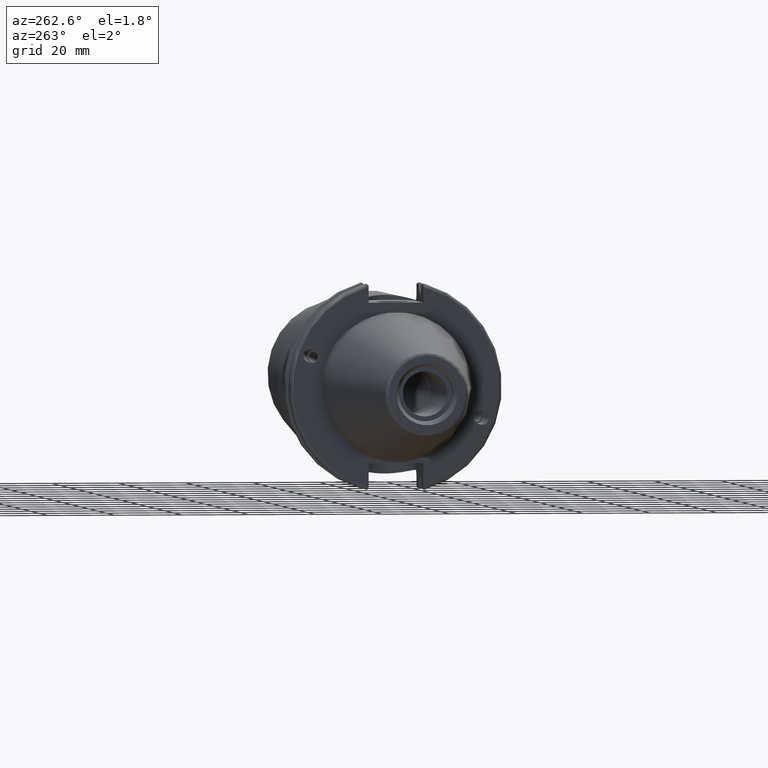
[diagram: clean part render]
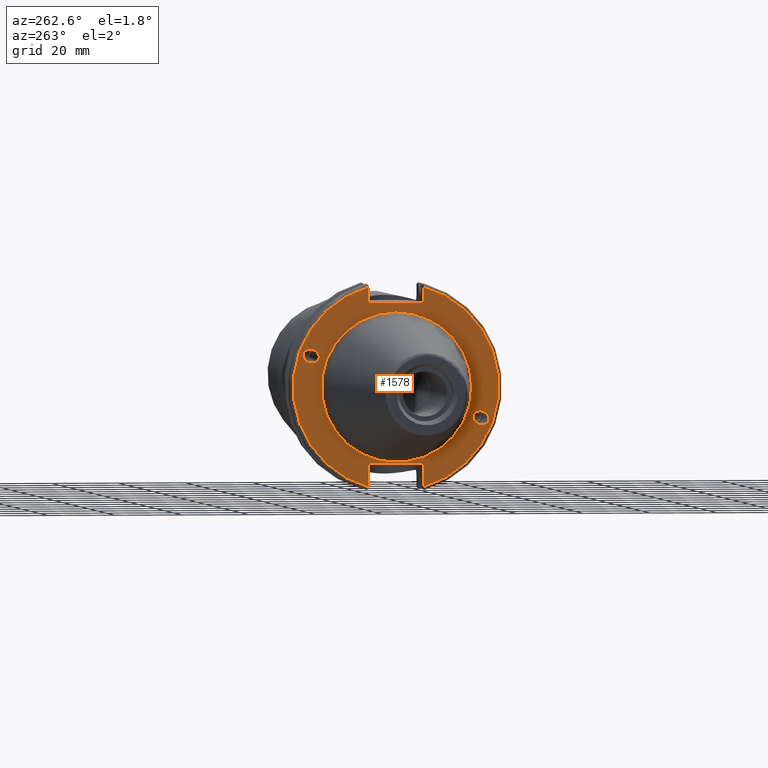
[diagram: same view with one face highlighted and labeled with its STEP entity id]
A machine part, auxiliary view. The second image highlights one B-rep face of the part: STEP entity #1578.
In plain terms, the highlighted planar face has unit normal (-1, 0, 0).
Its self-contained STEP definition (entity closure, byte-faithful):
#42=FACE_BOUND('',#279,.T.);
#43=FACE_BOUND('',#280,.T.);
#44=FACE_BOUND('',#281,.T.);
#61=PLANE('',#1765);
#92=ELLIPSE('',#1712,2.44154917752292,2.00000000000001);
#101=ELLIPSE('',#1755,2.44154917752292,2.00000000000001);
#176=FACE_OUTER_BOUND('',#278,.T.);
#278=EDGE_LOOP('',(#1266,#1267,#1268,#1269,#1270,#1271,#1272,#1273));
#279=EDGE_LOOP('',(#1274));
#280=EDGE_LOOP('',(#1275));
#281=EDGE_LOOP('',(#1276));
#376=CIRCLE('',#1763,22.3);
#378=CIRCLE('',#1766,30.75);
#379=CIRCLE('',#1767,30.75);
#452=LINE('',#2882,#540);
#453=LINE('',#2886,#541);
#454=LINE('',#2888,#542);
#455=LINE('',#2890,#543);
#456=LINE('',#2894,#544);
#457=LINE('',#2895,#545);
#540=VECTOR('',#2130,10.);
#541=VECTOR('',#2133,10.);
#542=VECTOR('',#2134,10.);
#543=VECTOR('',#2135,10.);
#544=VECTOR('',#2138,10.);
#545=VECTOR('',#2139,10.);
#680=VERTEX_POINT('',#2677);
#720=VERTEX_POINT('',#2860);
#725=VERTEX_POINT('',#2875);
#726=VERTEX_POINT('',#2880);
#727=VERTEX_POINT('',#2881);
#728=VERTEX_POINT('',#2883);
#729=VERTEX_POINT('',#2885);
#730=VERTEX_POINT('',#2887);
#731=VERTEX_POINT('',#2889);
#732=VERTEX_POINT('',#2891);
#733=VERTEX_POINT('',#2893);
#862=EDGE_CURVE('',#680,#680,#92,.T.);
#918=EDGE_CURVE('',#720,#720,#101,.T.);
#925=EDGE_CURVE('',#725,#725,#376,.T.);
#927=EDGE_CURVE('',#726,#727,#452,.T.);
#928=EDGE_CURVE('',#728,#727,#378,.T.);
#929=EDGE_CURVE('',#728,#729,#453,.T.);
#930=EDGE_CURVE('',#729,#730,#454,.T.);
#931=EDGE_CURVE('',#730,#731,#455,.T.);
#932=EDGE_CURVE('',#732,#731,#379,.T.);
#933=EDGE_CURVE('',#732,#733,#456,.T.);
#934=EDGE_CURVE('',#733,#726,#457,.T.);
#1266=ORIENTED_EDGE('',*,*,#927,.T.);
#1267=ORIENTED_EDGE('',*,*,#928,.F.);
#1268=ORIENTED_EDGE('',*,*,#929,.T.);
#1269=ORIENTED_EDGE('',*,*,#930,.T.);
#1270=ORIENTED_EDGE('',*,*,#931,.T.);
#1271=ORIENTED_EDGE('',*,*,#932,.F.);
#1272=ORIENTED_EDGE('',*,*,#933,.T.);
#1273=ORIENTED_EDGE('',*,*,#934,.T.);
#1274=ORIENTED_EDGE('',*,*,#862,.T.);
#1275=ORIENTED_EDGE('',*,*,#918,.T.);
#1276=ORIENTED_EDGE('',*,*,#925,.F.);
#1578=ADVANCED_FACE('',(#176,#42,#43,#44),#61,.T.);
#1712=AXIS2_PLACEMENT_3D('',#2679,#2003,#2004);
#1755=AXIS2_PLACEMENT_3D('',#2862,#2106,#2107);
#1763=AXIS2_PLACEMENT_3D('',#2877,#2124,#2125);
#1765=AXIS2_PLACEMENT_3D('',#2879,#2128,#2129);
#1766=AXIS2_PLACEMENT_3D('',#2884,#2131,#2132);
#1767=AXIS2_PLACEMENT_3D('',#2892,#2136,#2137);
#2003=DIRECTION('center_axis',(1.,0.,0.));
#2004=DIRECTION('ref_axis',(5.68400912649E-17,-0.939692620785909,-0.342020143325667));
#2106=DIRECTION('center_axis',(1.,0.,0.));
#2107=DIRECTION('ref_axis',(5.68400912649E-17,0.939692620785909,0.342020143325667));
#2124=DIRECTION('center_axis',(-1.,0.,0.));
#2125=DIRECTION('ref_axis',(0.,-1.,1.83697019872103E-16));
#2128=DIRECTION('center_axis',(-1.,0.,0.));
#2129=DIRECTION('ref_axis',(0.,0.,1.));
#2130=DIRECTION('',(0.,0.,1.));
#2131=DIRECTION('center_axis',(1.,0.,0.));
#2132=DIRECTION('ref_axis',(0.,1.,1.60812264967664E-16));
#2133=DIRECTION('',(0.,0.,1.));
#2134=DIRECTION('',(0.,-1.,0.));
#2135=DIRECTION('',(0.,0.,-1.));
#2136=DIRECTION('center_axis',(1.,0.,0.));
#2137=DIRECTION('ref_axis',(0.,-1.,1.60812264967664E-16));
#2138=DIRECTION('',(0.,0.,-1.));
#2139=DIRECTION('',(0.,1.,0.));
#2677=CARTESIAN_POINT('',(3.175,-23.0773950158153,-8.39948487016));
#2679=CARTESIAN_POINT('Origin',(3.175,-25.3717007612195,-9.23454386979305));
#2860=CARTESIAN_POINT('',(3.175,23.0773950158153,8.39948487016));
#2862=CARTESIAN_POINT('Origin',(3.175,25.3717007612195,9.23454386979306));
#2875=CARTESIAN_POINT('',(3.175,-2.7309623620986E-15,22.3));
#2877=CARTESIAN_POINT('Origin',(3.175,0.,0.));
#2879=CARTESIAN_POINT('Origin',(3.175,31.75,0.));
#2880=CARTESIAN_POINT('',(3.17499999999999,8.18999999999999,25.));
#2881=CARTESIAN_POINT('',(3.175,8.19,29.6392712461019));
#2882=CARTESIAN_POINT('',(3.175,8.19,12.5));
#2883=CARTESIAN_POINT('',(3.175,8.18999999999999,-29.6392712461019));
#2884=CARTESIAN_POINT('Origin',(3.175,0.,0.));
#2885=CARTESIAN_POINT('',(3.175,8.19000000000001,-22.6));
#2886=CARTESIAN_POINT('',(3.175,8.19000000000001,-11.3));
#2887=CARTESIAN_POINT('',(3.175,-8.19,-22.6));
#2888=CARTESIAN_POINT('',(3.175,15.875,-22.6));
#2889=CARTESIAN_POINT('',(3.175,-8.19,-29.6392712461019));
#2890=CARTESIAN_POINT('',(3.175,-8.19,-11.3));
#2891=CARTESIAN_POINT('',(3.175,-8.18999999999999,29.6392712461019));
#2892=CARTESIAN_POINT('Origin',(3.175,0.,0.));
#2893=CARTESIAN_POINT('',(3.175,-8.19000000000001,25.));
#2894=CARTESIAN_POINT('',(3.175,-8.19000000000001,12.5));
#2895=CARTESIAN_POINT('',(3.175,15.875,25.));